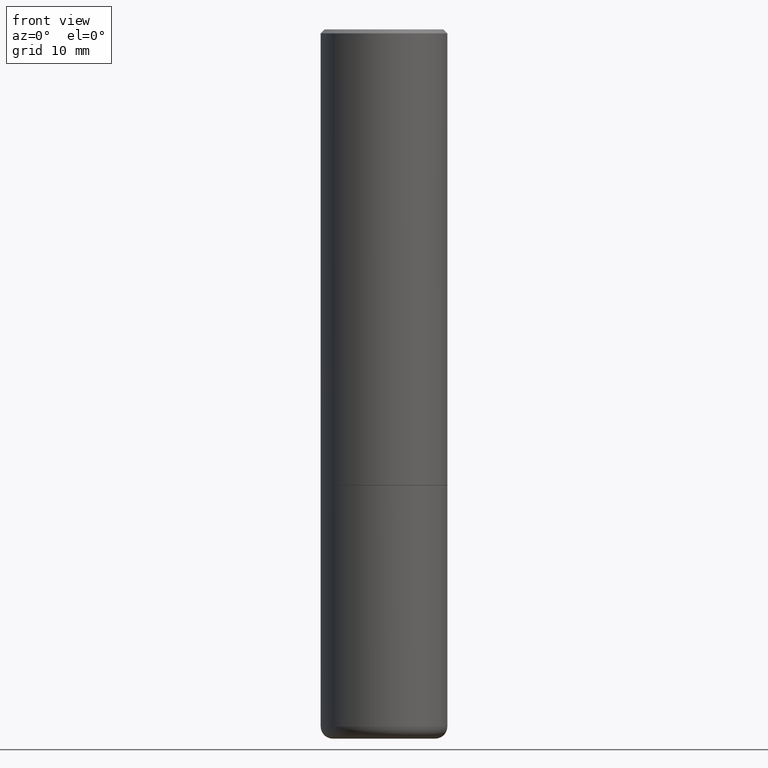
[diagram: clean part render]
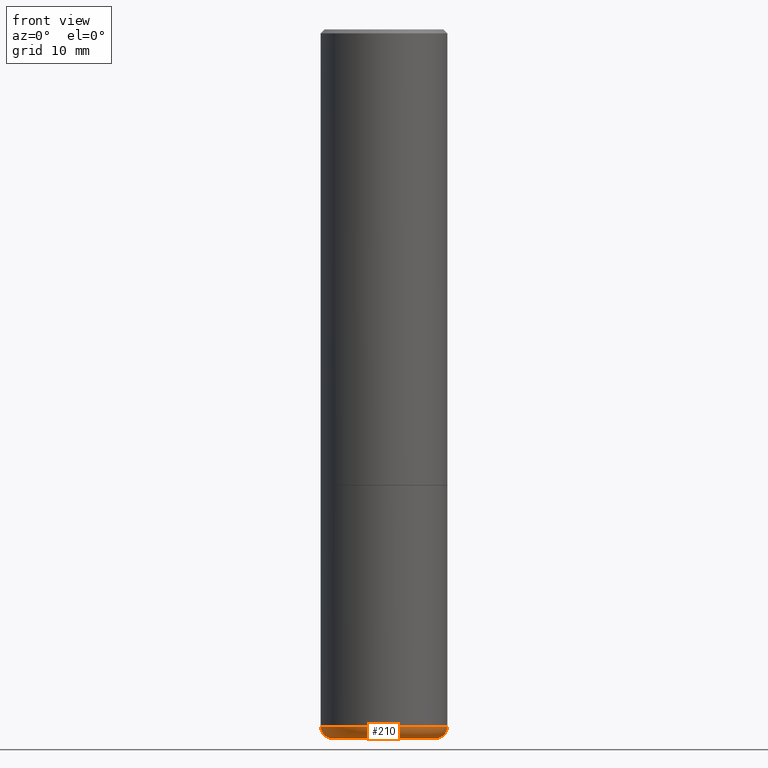
[diagram: same view with one face highlighted and labeled with its STEP entity id]
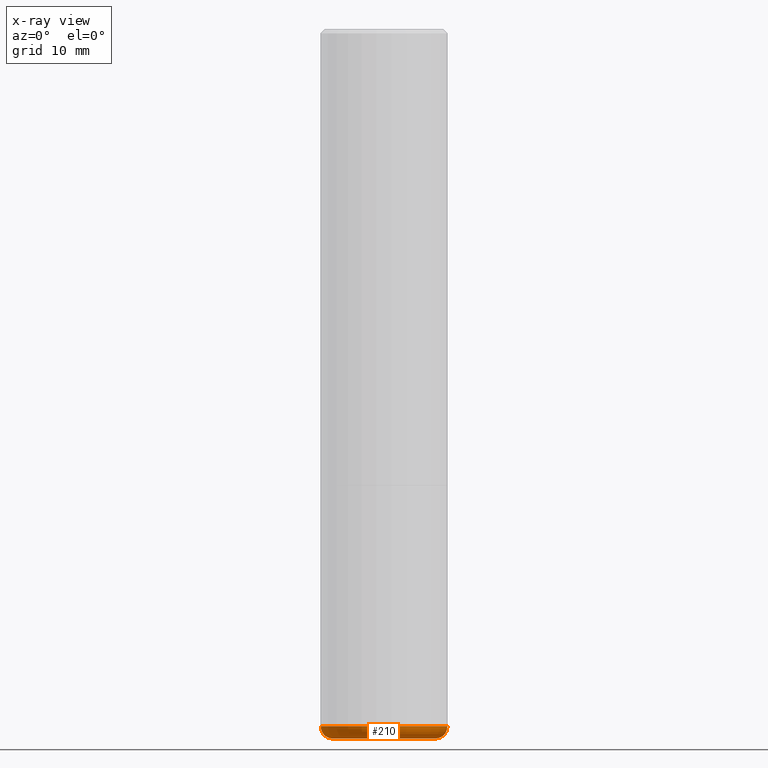
[diagram: x-ray of the same camera — body ghosted, the highlighted face saturated]
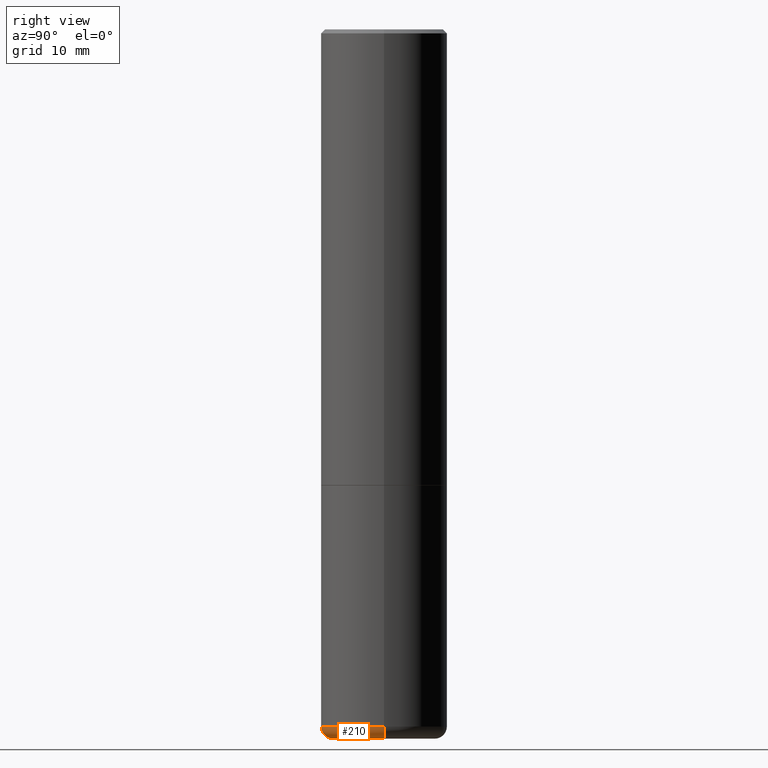
[diagram: same view with one face highlighted and labeled with its STEP entity id]
A machine part, front view. The second image highlights one B-rep face of the part: STEP entity #210.
The next image is the same camera in x-ray: the body ghosted, the highlighted face saturated — about 0% of this face is hidden behind the body in this view.
A second angle (right view) of the same face is appended — the face is thin or edge-on in the first view.
In plain terms, the highlighted toroidal blend (fillet) surface has major radius 6.4135 mm and minor (blend) radius 1.524 mm.
Its self-contained STEP definition (entity closure, byte-faithful):
#5 = EDGE_CURVE ( 'NONE', #384, #326, #220, .T. ) ;
#46 = EDGE_CURVE ( 'NONE', #384, #217, #158, .T. ) ;
#48 = DIRECTION ( 'NONE',  ( -1.000000000000000000, 7.105427357600997914E-15, 0.000000000000000000 ) ) ;
#64 = DIRECTION ( 'NONE',  ( 1.000000000000000000, -6.982962677686274599E-15, 0.000000000000000000 ) ) ;
#72 = VERTEX_POINT ( 'NONE', #305 ) ;
#74 = CIRCLE ( 'NONE', #372, 0.3125000000000000000 ) ;
#76 = CARTESIAN_POINT ( 'NONE',  ( 8.412412693276869938E-29, -1.201069580562042103E-14, -3.439999999999999947 ) ) ;
#85 = ORIENTED_EDGE ( 'NONE', *, *, #100, .T. ) ;
#92 = EDGE_LOOP ( 'NONE', ( #102, #410, #85, #204 ) ) ;
#100 = EDGE_CURVE ( 'NONE', #326, #72, #283, .T. ) ;
#102 = ORIENTED_EDGE ( 'NONE', *, *, #46, .F. ) ;
#120 = EDGE_CURVE ( 'NONE', #217, #72, #74, .T. ) ;
#123 = AXIS2_PLACEMENT_3D ( 'NONE', #173, #273, #48 ) ;
#125 = CARTESIAN_POINT ( 'NONE',  ( -0.3125000000000000000, -9.790249756370107944E-15, -3.439999999999999947 ) ) ;
#128 = DIRECTION ( 'NONE',  ( -6.982962677686266711E-15, -1.000000000000000000, 3.491481338843145583E-15 ) ) ;
#135 = CARTESIAN_POINT ( 'NONE',  ( 8.559140821647976968E-29, -1.222018468595100934E-14, -3.500000000000000000 ) ) ;
#139 = TOROIDAL_SURFACE ( 'NONE', #144, 0.2525000000000000022, 0.05999999999999995615 ) ;
#144 = AXIS2_PLACEMENT_3D ( 'NONE', #358, #304, #227 ) ;
#158 = CIRCLE ( 'NONE', #123, 0.05999999999999994227 ) ;
#168 = AXIS2_PLACEMENT_3D ( 'NONE', #417, #128, #64 ) ;
#173 = CARTESIAN_POINT ( 'NONE',  ( -0.2525000000000000022, -1.021657539782616686E-14, -3.439999999999999947 ) ) ;
#188 = CARTESIAN_POINT ( 'NONE',  ( 0.2525000000000000022, -1.398338276206679106E-14, -3.500000000000000000 ) ) ;
#204 = ORIENTED_EDGE ( 'NONE', *, *, #120, .F. ) ;
#210 = ADVANCED_FACE ( 'NONE', ( #292 ), #139, .T. ) ;
#217 = VERTEX_POINT ( 'NONE', #125 ) ;
#220 = CIRCLE ( 'NONE', #276, 0.2525000000000000022 ) ;
#227 = DIRECTION ( 'NONE',  ( 1.000000000000000000, -6.982962677686264344E-15, 4.883557194083112340E-29 ) ) ;
#273 = DIRECTION ( 'NONE',  ( 7.105427357601001859E-15, 1.000000000000000000, -3.491481338843145583E-15 ) ) ;
#276 = AXIS2_PLACEMENT_3D ( 'NONE', #135, #367, #331 ) ;
#283 = CIRCLE ( 'NONE', #168, 0.05999999999999994227 ) ;
#290 = DIRECTION ( 'NONE',  ( -2.445468806185136597E-29, 3.491481338843145583E-15, 1.000000000000000000 ) ) ;
#292 = FACE_OUTER_BOUND ( 'NONE', #92, .T. ) ;
#304 = DIRECTION ( 'NONE',  ( -2.445468806185136597E-29, 3.491481338843145583E-15, 1.000000000000000000 ) ) ;
#305 = CARTESIAN_POINT ( 'NONE',  ( 0.3125000000000000000, -1.419287164239737937E-14, -3.439999999999999947 ) ) ;
#325 = DIRECTION ( 'NONE',  ( 1.000000000000000000, -6.982962677686269077E-15, 0.000000000000000000 ) ) ;
#326 = VERTEX_POINT ( 'NONE', #188 ) ;
#331 = DIRECTION ( 'NONE',  ( 1.000000000000000000, -6.982962677686269866E-15, 0.000000000000000000 ) ) ;
#354 = CARTESIAN_POINT ( 'NONE',  ( -0.2525000000000000022, -1.010815701726343156E-14, -3.500000000000000000 ) ) ;
#358 = CARTESIAN_POINT ( 'NONE',  ( 8.412412693276869938E-29, -1.201069580562042103E-14, -3.439999999999999947 ) ) ;
#367 = DIRECTION ( 'NONE',  ( -2.445468806185136597E-29, 3.491481338843145583E-15, 1.000000000000000000 ) ) ;
#372 = AXIS2_PLACEMENT_3D ( 'NONE', #76, #290, #325 ) ;
#384 = VERTEX_POINT ( 'NONE', #354 ) ;
#410 = ORIENTED_EDGE ( 'NONE', *, *, #5, .T. ) ;
#417 = CARTESIAN_POINT ( 'NONE',  ( 0.2525000000000000022, -1.377389388173620432E-14, -3.439999999999999947 ) ) ;